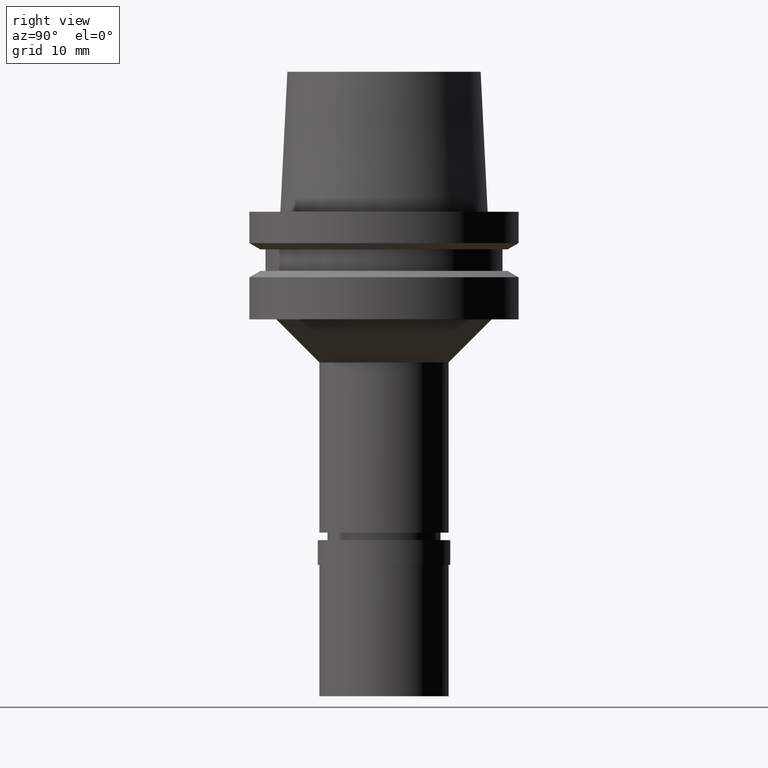
[diagram: clean part render]
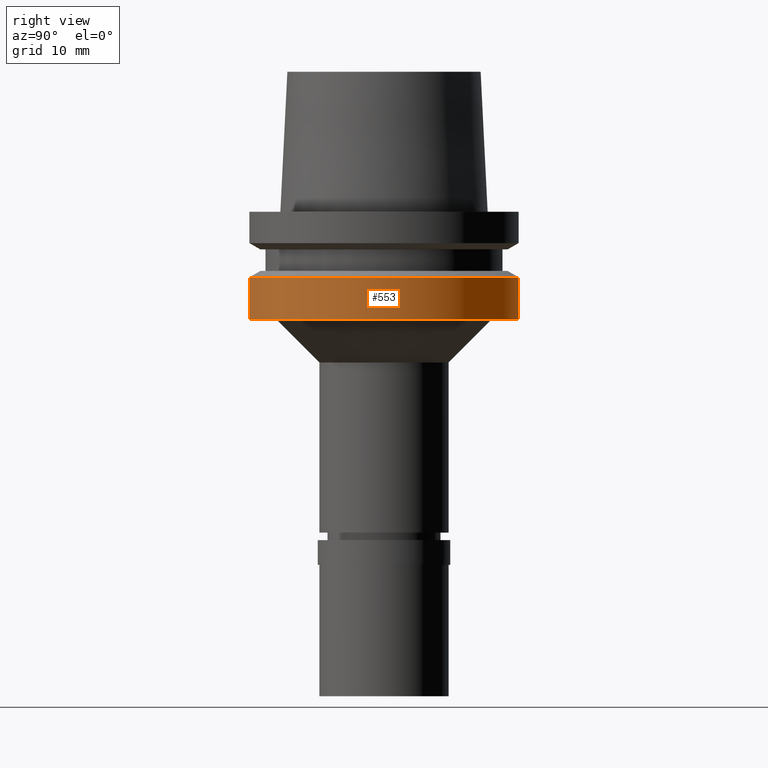
[diagram: same view with one face highlighted and labeled with its STEP entity id]
A machine part, right view. The second image highlights one B-rep face of the part: STEP entity #553.
In plain terms, the highlighted cylindrical surface (partial cylindrical patch) has radius 12.5 mm, axis along (0, 0, 1).
Its self-contained STEP definition (entity closure, byte-faithful):
#157 = VECTOR ( 'NONE', #2388, 1000.000000000000000 ) ;
#199 = FACE_OUTER_BOUND ( 'NONE', #1903, .T. ) ;
#288 = CARTESIAN_POINT ( 'NONE',  ( 0.0000000000000000000, -12.50000000000000000, -6.087713240272000448 ) ) ;
#315 = CARTESIAN_POINT ( 'NONE',  ( 0.0000000000000000000, -12.50000000000000000, -6.087713240272000448 ) ) ;
#473 = ORIENTED_EDGE ( 'NONE', *, *, #1783, .T. ) ;
#522 = LINE ( 'NONE', #1348, #157 ) ;
#553 = ADVANCED_FACE ( 'NONE', ( #199 ), #1461, .T. ) ;
#669 = AXIS2_PLACEMENT_3D ( 'NONE', #1185, #1419, #1405 ) ;
#783 = CARTESIAN_POINT ( 'NONE',  ( 0.0000000000000000000, 0.0000000000000000000, -6.087713240272999649 ) ) ;
#866 = VERTEX_POINT ( 'NONE', #288 ) ;
#979 = EDGE_CURVE ( 'NONE', #866, #1466, #2192, .T. ) ;
#999 = CARTESIAN_POINT ( 'NONE',  ( 0.0000000000000000000, 12.50000000000000000, -6.087713240272000448 ) ) ;
#1067 = DIRECTION ( 'NONE',  ( 0.0000000000000000000, 1.000000000000000000, 0.0000000000000000000 ) ) ;
#1121 = AXIS2_PLACEMENT_3D ( 'NONE', #783, #1372, #2244 ) ;
#1185 = CARTESIAN_POINT ( 'NONE',  ( 0.0000000000000000000, 0.0000000000000000000, -10.00000000000000000 ) ) ;
#1277 = CIRCLE ( 'NONE', #669, 12.50000000000000000 ) ;
#1291 = AXIS2_PLACEMENT_3D ( 'NONE', #1694, #2110, #1067 ) ;
#1348 = CARTESIAN_POINT ( 'NONE',  ( 0.0000000000000000000, 12.50000000000000000, -6.087713240272000448 ) ) ;
#1372 = DIRECTION ( 'NONE',  ( 0.0000000000000000000, 0.0000000000000000000, -1.000000000000000000 ) ) ;
#1405 = DIRECTION ( 'NONE',  ( 0.0000000000000000000, -1.000000000000000000, 0.0000000000000000000 ) ) ;
#1419 = DIRECTION ( 'NONE',  ( 0.0000000000000000000, 0.0000000000000000000, 1.000000000000000000 ) ) ;
#1461 = CYLINDRICAL_SURFACE ( 'NONE', #1291, 12.50000000000000000 ) ;
#1466 = VERTEX_POINT ( 'NONE', #1962 ) ;
#1584 = CARTESIAN_POINT ( 'NONE',  ( 0.0000000000000000000, 12.50000000000000000, -10.00000000000000000 ) ) ;
#1665 = EDGE_CURVE ( 'NONE', #2524, #1766, #522, .T. ) ;
#1694 = CARTESIAN_POINT ( 'NONE',  ( 0.0000000000000000000, 0.0000000000000000000, -43.70000000000000284 ) ) ;
#1766 = VERTEX_POINT ( 'NONE', #1584 ) ;
#1783 = EDGE_CURVE ( 'NONE', #2524, #866, #2419, .T. ) ;
#1856 = VECTOR ( 'NONE', #1984, 1000.000000000000000 ) ;
#1867 = ORIENTED_EDGE ( 'NONE', *, *, #2401, .T. ) ;
#1903 = EDGE_LOOP ( 'NONE', ( #473, #2420, #1867, #2088 ) ) ;
#1962 = CARTESIAN_POINT ( 'NONE',  ( 0.0000000000000000000, -12.50000000000000000, -10.00000000000000000 ) ) ;
#1984 = DIRECTION ( 'NONE',  ( 0.0000000000000000000, -1.825263569095999977E-13, -1.000000000000000000 ) ) ;
#2088 = ORIENTED_EDGE ( 'NONE', *, *, #1665, .F. ) ;
#2110 = DIRECTION ( 'NONE',  ( 0.0000000000000000000, 0.0000000000000000000, 1.000000000000000000 ) ) ;
#2192 = LINE ( 'NONE', #315, #1856 ) ;
#2244 = DIRECTION ( 'NONE',  ( 0.0000000000000000000, 1.000000000000000000, 0.0000000000000000000 ) ) ;
#2388 = DIRECTION ( 'NONE',  ( 0.0000000000000000000, 1.825263569095999977E-13, -1.000000000000000000 ) ) ;
#2401 = EDGE_CURVE ( 'NONE', #1466, #1766, #1277, .T. ) ;
#2419 = CIRCLE ( 'NONE', #1121, 12.50000000000000000 ) ;
#2420 = ORIENTED_EDGE ( 'NONE', *, *, #979, .T. ) ;
#2524 = VERTEX_POINT ( 'NONE', #999 ) ;